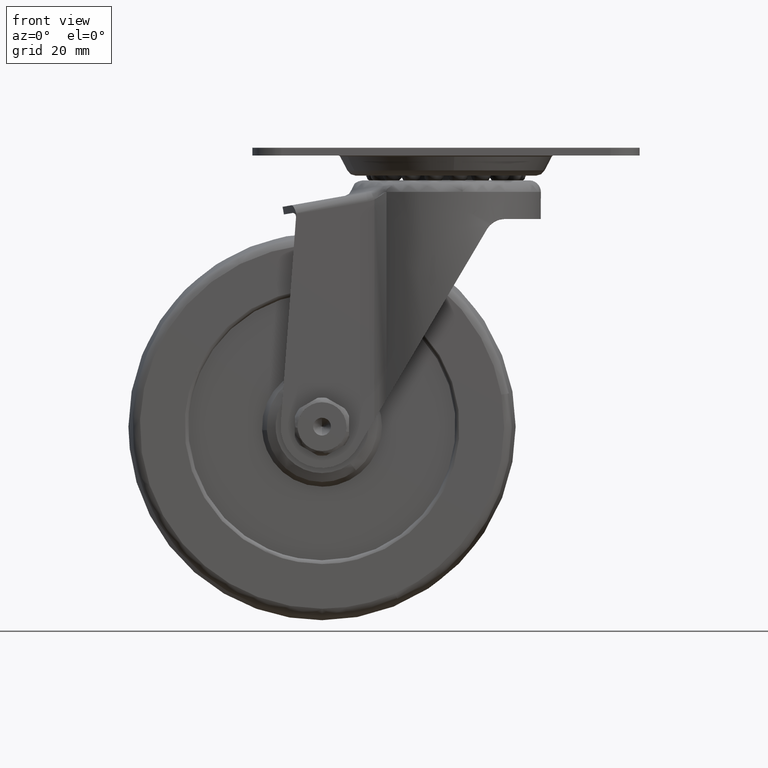
[diagram: clean part render]
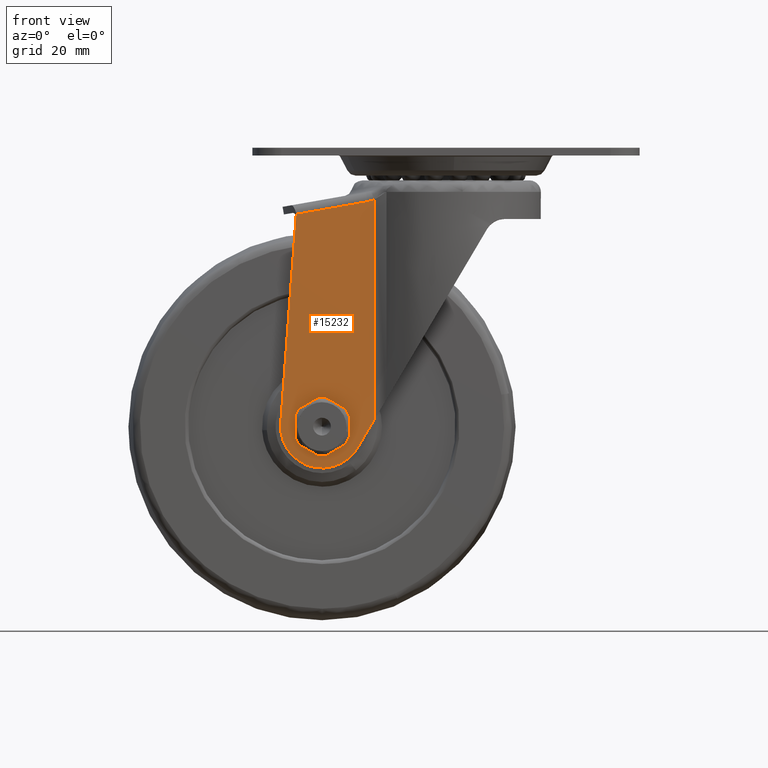
[diagram: same view with one face highlighted and labeled with its STEP entity id]
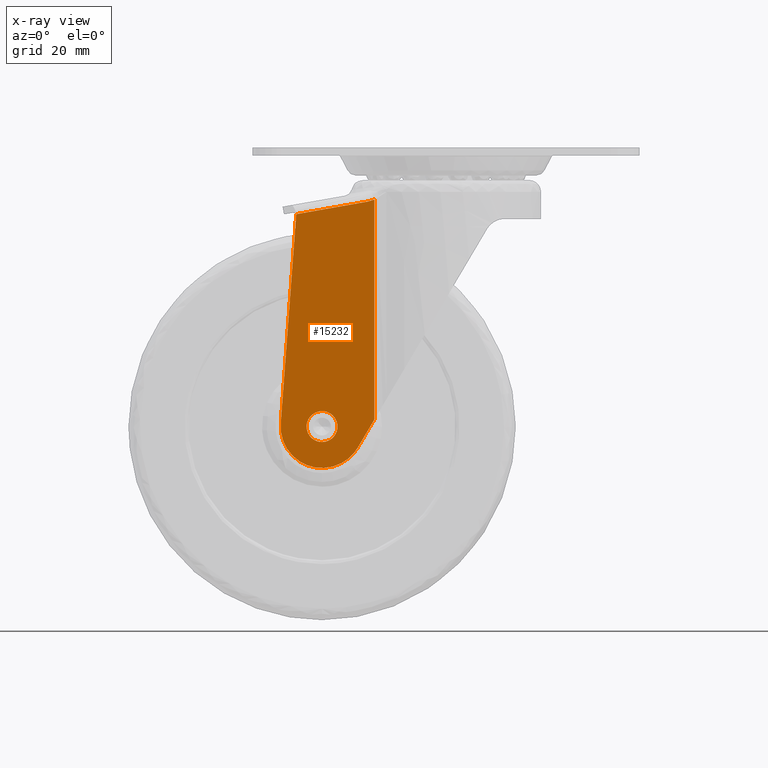
[diagram: x-ray of the same camera — body ghosted, the highlighted face saturated]
A machine part, front view. The second image highlights one B-rep face of the part: STEP entity #15232.
The next image is the same camera in x-ray: the body ghosted, the highlighted face saturated — about 0% of this face is hidden behind the body in this view.
In plain terms, the highlighted face is a freeform B-spline surface patch.
Its self-contained STEP definition (entity closure, byte-faithful):
#10578=CARTESIAN_POINT('',(-28.027961894596562,-18.0,-70.472136939058970));
#10579=VERTEX_POINT('',#10578);
#10585=CARTESIAN_POINT('',(-32.0,-18.0,-65.999999999999886));
#10586=VERTEX_POINT('',#10585);
#10587=CARTESIAN_POINT('',(-28.027961894596562,-18.000000000000004,-70.472136939058970));
#10588=CARTESIAN_POINT('',(-27.999999999999886,-18.0,-70.236896479044120));
#10589=CARTESIAN_POINT('',(-27.999999999999890,-18.0,-70.0));
#10590=CARTESIAN_POINT('',(-27.999999999999883,-18.000000000000007,-65.999999999999886));
#10591=CARTESIAN_POINT('',(-32.0,-18.0,-65.999999999999886));
#10599=(BOUNDED_CURVE()B_SPLINE_CURVE(2,(#10587,#10588,#10589,#10590,#10591),.UNSPECIFIED.,.F.,.U.)B_SPLINE_CURVE_WITH_KNOTS((3,2,3),(0.229562473478890,0.250000000000000,0.500000000000000),.UNSPECIFIED.)CURVE()GEOMETRIC_REPRESENTATION_ITEM()RATIONAL_B_SPLINE_CURVE((0.956026754115845,0.976055948290587,1.0,0.707106781186548,1.0))REPRESENTATION_ITEM(''));
#10600=EDGE_CURVE('',#10579,#10586,#10599,.T.);
#10602=CARTESIAN_POINT('',(-35.992539193682873,-18.0,-69.755805841783513));
#10603=VERTEX_POINT('',#10602);
#10604=CARTESIAN_POINT('',(-32.0,-18.0,-65.999999999999886));
#10605=CARTESIAN_POINT('',(-35.762824267477363,-18.000000000000004,-65.999999999999886));
#10606=CARTESIAN_POINT('',(-35.992539193682873,-17.999999999999996,-69.755805841783513));
#10614=(BOUNDED_CURVE()B_SPLINE_CURVE(2,(#10604,#10605,#10606),.UNSPECIFIED.,.F.,.U.)B_SPLINE_CURVE_WITH_KNOTS((3,3),(0.500000000000000,0.739332962235308),.UNSPECIFIED.)CURVE()GEOMETRIC_REPRESENTATION_ITEM()RATIONAL_B_SPLINE_CURVE((1.0,0.719603993290969,0.976072041658927))REPRESENTATION_ITEM(''));
#10615=EDGE_CURVE('',#10586,#10603,#10614,.T.);
#10689=CARTESIAN_POINT('',(-32.0,-18.0,-74.000000000000128));
#10690=VERTEX_POINT('',#10689);
#10691=CARTESIAN_POINT('',(-35.992539193682873,-17.999999999999996,-69.755805841783513));
#10692=CARTESIAN_POINT('',(-36.000000000000114,-18.000000000000004,-69.877788946728373));
#10693=CARTESIAN_POINT('',(-36.000000000000107,-18.0,-70.0));
#10694=CARTESIAN_POINT('',(-36.000000000000107,-18.000000000000007,-74.000000000000128));
#10695=CARTESIAN_POINT('',(-32.0,-18.0,-74.000000000000128));
#10703=(BOUNDED_CURVE()B_SPLINE_CURVE(2,(#10691,#10692,#10693,#10694,#10695),.UNSPECIFIED.,.F.,.U.)B_SPLINE_CURVE_WITH_KNOTS((3,2,3),(0.739332962235308,0.750000000000000,1.0),.UNSPECIFIED.)CURVE()GEOMETRIC_REPRESENTATION_ITEM()RATIONAL_B_SPLINE_CURVE((0.976072041658927,0.987502787895579,1.0,0.707106781186548,1.0))REPRESENTATION_ITEM(''));
#10704=EDGE_CURVE('',#10603,#10690,#10703,.T.);
#10706=CARTESIAN_POINT('',(-32.0,-18.0,-74.000000000000128));
#10707=CARTESIAN_POINT('',(-28.447301896972505,-17.999999999999996,-74.000000000000142));
#10708=CARTESIAN_POINT('',(-28.027961894596565,-18.0,-70.472136939058970));
#10716=(BOUNDED_CURVE()B_SPLINE_CURVE(2,(#10706,#10707,#10708),.UNSPECIFIED.,.F.,.U.)B_SPLINE_CURVE_WITH_KNOTS((3,3),(0.0,0.229562473478890),.UNSPECIFIED.)CURVE()GEOMETRIC_REPRESENTATION_ITEM()RATIONAL_B_SPLINE_CURVE((1.0,0.731050832895961,0.956026754115846))REPRESENTATION_ITEM(''));
#10717=EDGE_CURVE('',#10690,#10579,#10716,.T.);
#12299=CARTESIAN_POINT('',(-20.241153861627950,-18.0,-11.917088958756899));
#12300=VERTEX_POINT('',#12299);
#12314=CARTESIAN_POINT('',(-18.472953201911150,-18.0,-11.383863257316600));
#12315=VERTEX_POINT('',#12314);
#12316=CARTESIAN_POINT('',(-18.472953201911150,-18.0,-11.383863257316600));
#12317=CARTESIAN_POINT('',(-18.614777412186719,-18.0,-11.445179613351980));
#12318=CARTESIAN_POINT('',(-18.758200400120479,-18.0,-11.502426545083370));
#12319=CARTESIAN_POINT('',(-19.048273333859491,-18.0,-11.608706720593430));
#12320=CARTESIAN_POINT('',(-19.194755035468869,-18.0,-11.657668490753739));
#12321=CARTESIAN_POINT('',(-19.637238339690470,-18.0,-11.791444061555540));
#12322=CARTESIAN_POINT('',(-19.936776523968799,-18.0,-11.863419056595340));
#12323=CARTESIAN_POINT('',(-20.241153861627950,-18.0,-11.917088958756899));
#12324=B_SPLINE_CURVE_WITH_KNOTS('',3,(#12316,#12317,#12318,#12319,#12320,#12321,#12322,#12323),.UNSPECIFIED.,.F.,.U.,(4,2,2,4),(0.0,0.250000000000000,0.500000000000000,1.0),.UNSPECIFIED.);
#12325=EDGE_CURVE('',#12315,#12300,#12324,.T.);
#12491=CARTESIAN_POINT('',(-38.655965050155352,-18.0,-15.164114911517849));
#12492=VERTEX_POINT('',#12491);
#12508=CARTESIAN_POINT('',(-20.241153861627950,-18.0,-11.917088958756899));
#12509=CARTESIAN_POINT('',(-38.655965050155352,-18.0,-15.164114911517849));
#12510=QUASI_UNIFORM_CURVE('',1,(#12508,#12509),.UNSPECIFIED.,.F.,.U.);
#12511=EDGE_CURVE('',#12300,#12492,#12510,.T.);
#13933=CARTESIAN_POINT('',(-18.472953201911150,-18.0,-68.150835256295295));
#13934=VERTEX_POINT('',#13933);
#13935=CARTESIAN_POINT('',(-18.472953201911150,-18.0,-68.150835256295295));
#13936=CARTESIAN_POINT('',(-18.472953201911150,-18.0,-11.383863257316600));
#13937=QUASI_UNIFORM_CURVE('',1,(#13935,#13936),.UNSPECIFIED.,.F.,.U.);
#13938=EDGE_CURVE('',#13934,#12315,#13937,.T.);
#14680=CARTESIAN_POINT('',(-42.670598428315152,-18.0,-69.207327822086398));
#14681=VERTEX_POINT('',#14680);
#14704=CARTESIAN_POINT('',(-22.791341072274552,-18.0,-75.448908216589899));
#14705=VERTEX_POINT('',#14704);
#14711=CARTESIAN_POINT('',(-42.670598428315152,-18.0,-69.207327822086384));
#14712=CARTESIAN_POINT('',(-43.299059666031937,-18.000000000000004,-77.667391997782389));
#14713=CARTESIAN_POINT('',(-35.205253224178833,-18.0,-80.208641034383149));
#14714=CARTESIAN_POINT('',(-27.111446782325718,-18.000000000000004,-82.749890070983895));
#14715=CARTESIAN_POINT('',(-22.791341072274491,-18.0,-75.448908216589942));
#14723=(BOUNDED_CURVE()B_SPLINE_CURVE(2,(#14711,#14712,#14713,#14714,#14715),.UNSPECIFIED.,.F.,.U.)B_SPLINE_CURVE_WITH_KNOTS((3,2,3),(0.0,0.500000000000000,1.0),.UNSPECIFIED.)CURVE()GEOMETRIC_REPRESENTATION_ITEM()RATIONAL_B_SPLINE_CURVE((1.0,0.783598643006571,1.0,0.783598643006571,1.0))REPRESENTATION_ITEM(''));
#14724=EDGE_CURVE('',#14681,#14705,#14723,.T.);
#15113=CARTESIAN_POINT('',(-42.670598428315152,-18.0,-69.207327822086398));
#15114=CARTESIAN_POINT('',(-38.655965050155352,-18.0,-15.164114911517849));
#15115=QUASI_UNIFORM_CURVE('',1,(#15113,#15114),.UNSPECIFIED.,.F.,.U.);
#15116=EDGE_CURVE('',#14681,#12492,#15115,.T.);
#15136=CARTESIAN_POINT('',(-18.472953201911150,-18.0,-68.150835256295295));
#15137=CARTESIAN_POINT('',(-22.791341072274552,-18.0,-75.448908216589899));
#15138=QUASI_UNIFORM_CURVE('',1,(#15136,#15137),.UNSPECIFIED.,.F.,.U.);
#15139=EDGE_CURVE('',#13934,#14705,#15138,.T.);
#15213=CARTESIAN_POINT('',(-43.908836127370670,-18.0,-84.155024026792418));
#15214=CARTESIAN_POINT('',(-17.262875500601581,-18.0,-84.155024026792418));
#15215=CARTESIAN_POINT('',(-43.908836127370670,-18.0,-7.921868592832233));
#15216=CARTESIAN_POINT('',(-17.262875500601581,-18.0,-7.921868592832233));
#15217=B_SPLINE_SURFACE_WITH_KNOTS('',1,1,((#15213,#15215),(#15214,#15216)),.UNSPECIFIED.,.F.,.F.,.U.,(2,2),(2,2),(0.0,26.645960626769089),(0.0,76.233155433960178),.UNSPECIFIED.);
#15218=ORIENTED_EDGE('',*,*,#13938,.T.);
#15219=ORIENTED_EDGE('',*,*,#12325,.T.);
#15220=ORIENTED_EDGE('',*,*,#12511,.T.);
#15221=ORIENTED_EDGE('',*,*,#15116,.F.);
#15222=ORIENTED_EDGE('',*,*,#14724,.T.);
#15223=ORIENTED_EDGE('',*,*,#15139,.F.);
#15224=EDGE_LOOP('',(#15218,#15219,#15220,#15221,#15222,#15223));
#15225=FACE_OUTER_BOUND('',#15224,.T.);
#15226=ORIENTED_EDGE('',*,*,#10615,.F.);
#15227=ORIENTED_EDGE('',*,*,#10600,.F.);
#15228=ORIENTED_EDGE('',*,*,#10717,.F.);
#15229=ORIENTED_EDGE('',*,*,#10704,.F.);
#15230=EDGE_LOOP('',(#15226,#15227,#15228,#15229));
#15231=FACE_BOUND('',#15230,.T.);
#15232=ADVANCED_FACE('',(#15225,#15231),#15217,.T.);